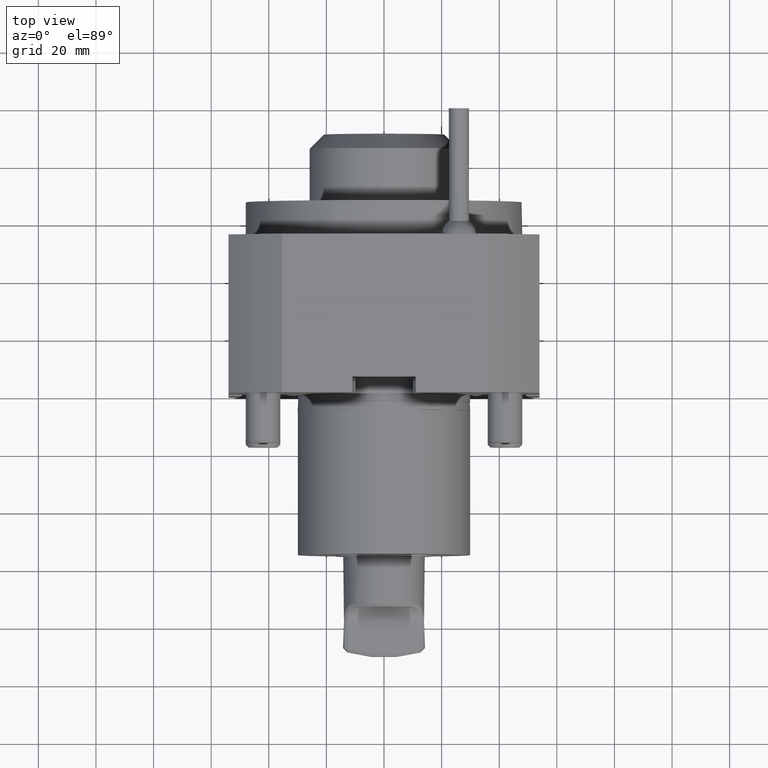
[diagram: clean part render]
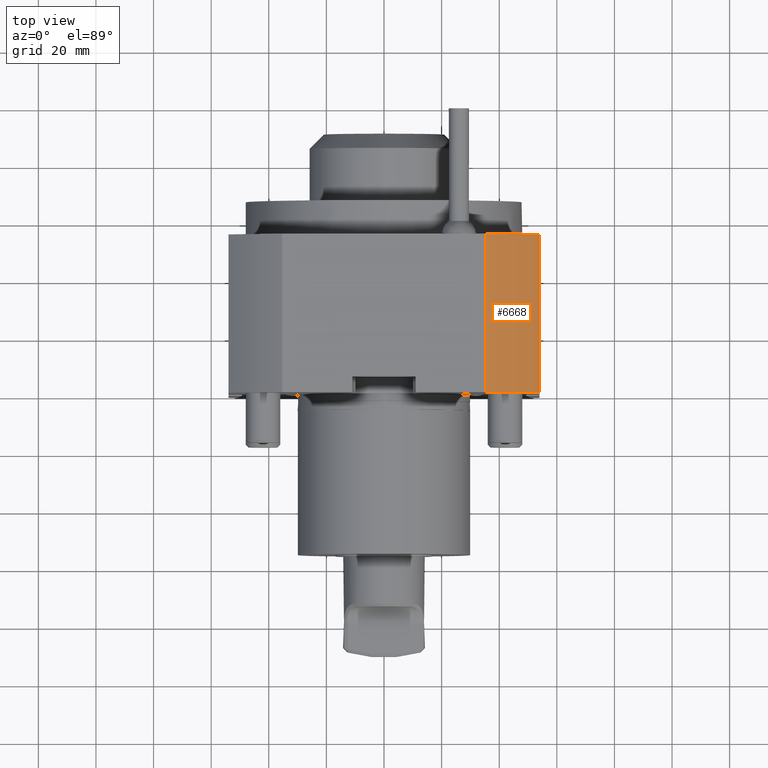
[diagram: same view with one face highlighted and labeled with its STEP entity id]
A machine part, top view. The second image highlights one B-rep face of the part: STEP entity #6668.
In plain terms, the highlighted cylindrical surface (partial cylindrical patch) has radius 74 mm, axis along (-0, -1, -0).
Its self-contained STEP definition (entity closure, byte-faithful):
#370 = VERTEX_POINT ( 'NONE', #10878 ) ;
#393 = CYLINDRICAL_SURFACE ( 'NONE', #5270, 73.99999999999998579 ) ;
#486 = VERTEX_POINT ( 'NONE', #17000 ) ;
#512 = DIRECTION ( 'NONE',  ( 0.000000000000000000, 0.000000000000000000, 1.000000000000000000 ) ) ;
#2384 = VERTEX_POINT ( 'NONE', #5340 ) ;
#2419 = LINE ( 'NONE', #10670, #13026 ) ;
#2723 = EDGE_CURVE ( 'NONE', #370, #2384, #15807, .T. ) ;
#2991 = CARTESIAN_POINT ( 'NONE',  ( 6.735557395310443404E-15, 54.99999999999998579, 0.000000000000000000 ) ) ;
#3159 = VECTOR ( 'NONE', #16067, 1000.000000000000000 ) ;
#3705 = EDGE_CURVE ( 'NONE', #12247, #2384, #7149, .T. ) ;
#3955 = AXIS2_PLACEMENT_3D ( 'NONE', #16793, #15313, #512 ) ;
#4211 = DIRECTION ( 'NONE',  ( -1.224646799147353207E-16, -1.000000000000000000, -0.000000000000000000 ) ) ;
#5270 = AXIS2_PLACEMENT_3D ( 'NONE', #13625, #20078, #16885 ) ;
#5340 = CARTESIAN_POINT ( 'NONE',  ( 35.36947836765479281, -2.081668171172168513E-14, 64.99999999999997158 ) ) ;
#6103 = EDGE_CURVE ( 'NONE', #486, #12247, #19164, .T. ) ;
#6668 = ADVANCED_FACE ( 'Defeature completata1_7', ( #7110 ), #393, .T. ) ;
#7110 = FACE_OUTER_BOUND ( 'NONE', #9511, .T. ) ;
#7149 = LINE ( 'NONE', #20117, #3159 ) ;
#9173 = ORIENTED_EDGE ( 'NONE', *, *, #18653, .F. ) ;
#9511 = EDGE_LOOP ( 'NONE', ( #14216, #9173, #20666, #15796 ) ) ;
#10670 = CARTESIAN_POINT ( 'NONE',  ( 53.99999999999999289, -42.99999999999988631, 50.59644256269404394 ) ) ;
#10837 = CARTESIAN_POINT ( 'NONE',  ( 35.36947836765479991, 54.99999999999998579, 64.99999999999997158 ) ) ;
#10878 = CARTESIAN_POINT ( 'NONE',  ( 54.00000000000000000, -6.938893903907228378E-15, 50.59644256269404394 ) ) ;
#12247 = VERTEX_POINT ( 'NONE', #10837 ) ;
#13026 = VECTOR ( 'NONE', #4211, 1000.000000000000000 ) ;
#13078 = AXIS2_PLACEMENT_3D ( 'NONE', #2991, #17411, #17612 ) ;
#13625 = CARTESIAN_POINT ( 'NONE',  ( -5.265981236333602693E-15, -42.99999999999987921, 0.000000000000000000 ) ) ;
#14216 = ORIENTED_EDGE ( 'NONE', *, *, #2723, .F. ) ;
#15313 = DIRECTION ( 'NONE',  ( -1.224646799147353207E-16, -1.000000000000000000, -0.000000000000000000 ) ) ;
#15796 = ORIENTED_EDGE ( 'NONE', *, *, #3705, .T. ) ;
#15807 = CIRCLE ( 'NONE', #3955, 73.99999999999998579 ) ;
#16067 = DIRECTION ( 'NONE',  ( -1.224646799147353207E-16, -1.000000000000000000, -0.000000000000000000 ) ) ;
#16793 = CARTESIAN_POINT ( 'NONE',  ( 1.540743955509788682E-30, 0.000000000000000000, 0.000000000000000000 ) ) ;
#16885 = DIRECTION ( 'NONE',  ( 0.000000000000000000, 0.000000000000000000, 1.000000000000000000 ) ) ;
#17000 = CARTESIAN_POINT ( 'NONE',  ( 54.00000000000000711, 54.99999999999998579, 50.59644256269404394 ) ) ;
#17411 = DIRECTION ( 'NONE',  ( -1.224646799147353207E-16, -1.000000000000000000, -0.000000000000000000 ) ) ;
#17612 = DIRECTION ( 'NONE',  ( 0.000000000000000000, 0.000000000000000000, 1.000000000000000000 ) ) ;
#18653 = EDGE_CURVE ( 'NONE', #486, #370, #2419, .T. ) ;
#19164 = CIRCLE ( 'NONE', #13078, 74.00000000000000000 ) ;
#20078 = DIRECTION ( 'NONE',  ( -1.224646799147353207E-16, -1.000000000000000000, -0.000000000000000000 ) ) ;
#20117 = CARTESIAN_POINT ( 'NONE',  ( 35.36947836765478570, -42.99999999999988631, 64.99999999999997158 ) ) ;
#20666 = ORIENTED_EDGE ( 'NONE', *, *, #6103, .T. ) ;